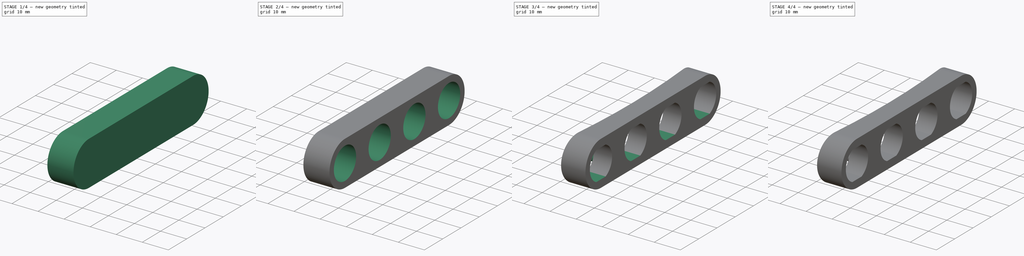
[diagram: build sequence overview — one tinted view per stage of 4, left to right]
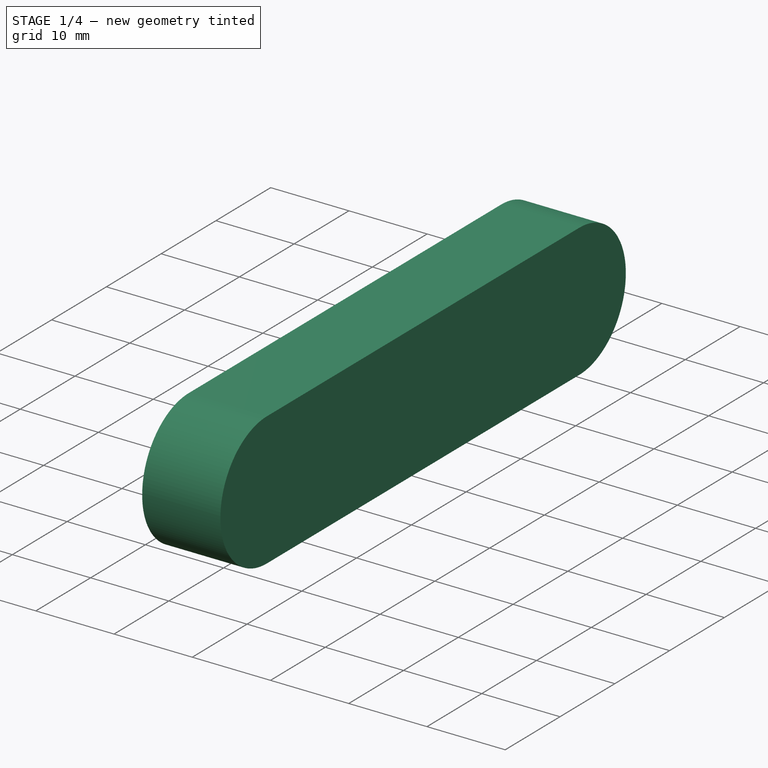
[diagram: stage 1 of 4 — iso view after this stage's code; geometry added in this stage tinted green]
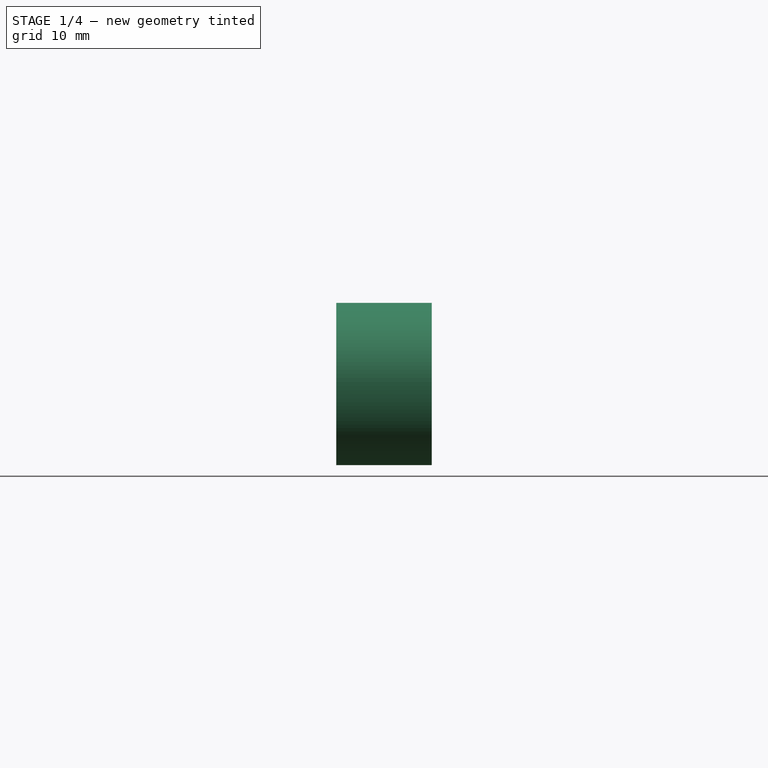
[diagram: stage 1 of 4 — front view after this stage's code; geometry added in this stage tinted green]
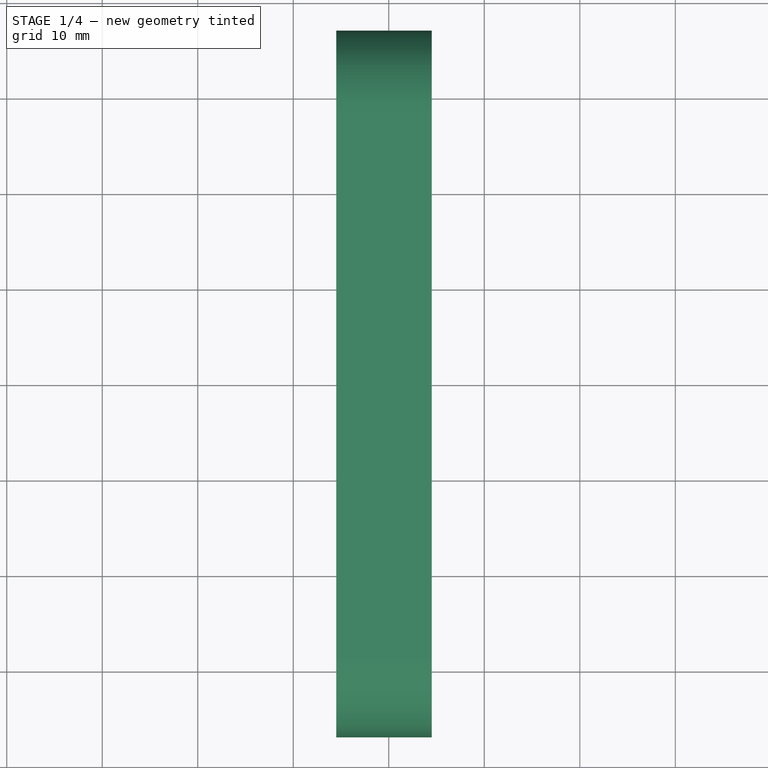
[diagram: stage 1 of 4 — top view after this stage's code; geometry added in this stage tinted green]
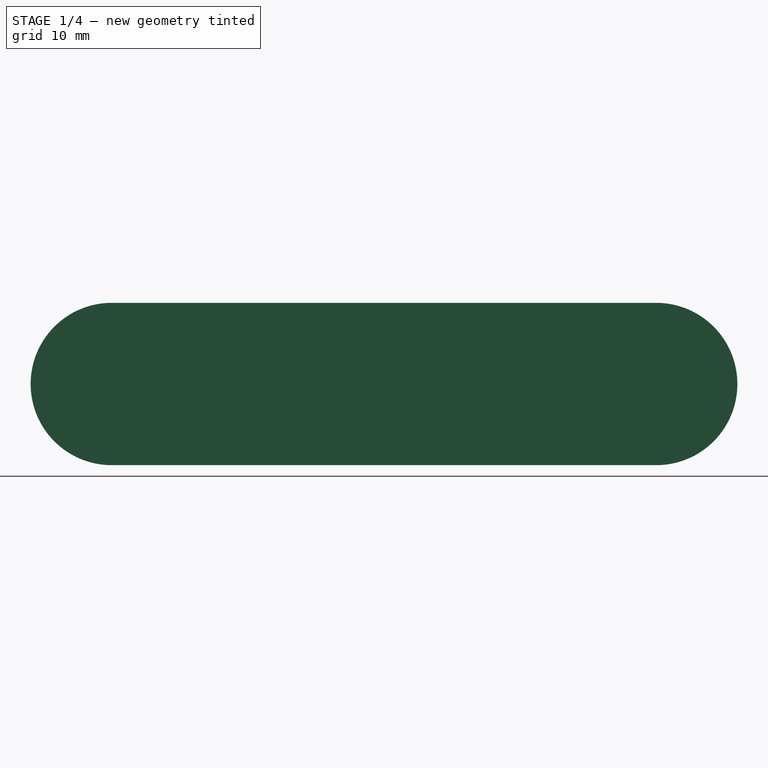
[diagram: stage 1 of 4 — right view after this stage's code; geometry added in this stage tinted green]
FCSTD DOCUMENT  (FreeCAD 1.0R39285 (Git))
Label: Holder_Banana_Plugs
License: All rights reserved
LicenseURL: https://en.wikipedia.org/wiki/All_rights_reserved
objects: Sketcher::SketchObject×9, PartDesign::Hole×2, PartDesign::Pad×2, Spreadsheet::Sheet×1, App::DocumentObjectGroup×1, Part::Extrusion×1, PartDesign::FeatureBase×1, PartDesign::Pocket×1, PartDesign::SubtractiveLoft×1, PartDesign::Chamfer×1, PartDesign::Body×1
note: 43 computed .brp shape members not serialized (recipe doc carries the construction recipe); baked Part::Feature solids carry a one-line shape summary decoded from their .brp

FEATURE [Spreadsheet::Sheet] Parameters
  cells = A1='Parameter; B1='Value; C1='Fromula; D1='Tolerance; E1='Comment; A2='d0; B2(d0_)=14.6; C2='14.6mm; A3='d1; B3(d1_)=14.143; C3='14.143mm; A4='d10; B4(d10_)=57; C4='57mm; A5='d12; B5(d12_)=5; C5='5mm; A6='d13; B6(d13_)=118; C6='118°; A7='d17; B7(d17_)=10; C7='10mm; A8='d18; B8(d18_)=0; C8='0°; A9='d2; B9(d2_)=19; C9='19mm; A10='d20; B10(d20_)=12.2; C10='12.2mm; A11='d21; B11(d21_)=6; C11='6mm; A12='d22; B12(d22_)=4; C12='4mm; A13='d23; B13(d23_)=2; C13='2mm; A14='d24; B14(d24_)=90; C14='90°; A15='d25; B15(d25_)=8; C15='8mm; A16='d26; B16(d26_)=118; C16='118°; A17='d27; B17(d27_)=19; C17='19mm; A18='d28; B18(d28_)==-10; C18='-10mm; A19='d36; B19(d36_)=15.1; C19='15.1mm; A20='d37; B20(d37_)=3; C20='3mm; A21='d38; B21(d38_)=0; C21='0°; A22='d39; B22(d39_)=2.9; C22='2.9mm; A23='d40; B23(d40_)=4; C23='4mm; A24='d41; B24(d41_)=10; C24='10mm; A25='d42; B25(d42_)=0; C25='0°; A26='d43; B26(d43_)=0.5; C26='0.5mm; A27='d44; B27(d44_)=2; C27='2mm; A28='d45; B28(d45_)=45; C28='45°; A29='d46; B29(d46_)=11.1; C29='11.1mm; A30='d47; B30(d47_)=10; C30='10mm; A31='d48; B31(d48_)=0; C31='0°; A32='d49; B32(d49_)=4.2; C32='4.2mm; A33='d50; B33(d50_)=6; C33='6mm; A34='d51; B34(d51_)=6.3; C34='6.3mm; A35='d52; B35(d52_)=2; C35='2mm; A36='d53; B36(d53_)=90; C36='90°; A37='d54; B37(d54_)=7; C37='7mm; A38='d55; B38(d55_)=0; C38='0°; A39='d59; B39(d59_)=5.64257585306618; C39='5.64258mm; A40='d64; B40(d64_)=617.104; C40='617.104mm; A41='d65; B41(d65_)=315.75; C41='315.75mm; A42='d66; B42(d66_)=617.402; C42='617.402mm; A43='d67; B43(d67_)=0; C43='0; A44='d68; B44(d68_)=90; C44='90°; A45='d69; B45(d69_)=0; C45='0; A46='d7; B46(d7_)=15; C46='15mm; A47='d70; B47(d70_)=90; C47='90°; A48='d8; B48(d8_)=84.5; C48='84.5mm; A49='d9; B49(d9_)=8.5; C49='8.5mm
FEATURE [Sketcher::SketchObject] Sketch5
  ArcFitTolerance = 1e-06
  FullyConstrained = true
  MakeInternals = false
  Placement = pos=(84.5,0,0) rot=(0,1,0;1.5708rad)
  sketch-geometry (7):
    g0: LineSegment [constr] StartX=14.1426 StartY=28.5 StartZ=0 EndX=14.1426 EndY=9.5 EndZ=0
    g1: LineSegment [constr] StartX=14.1426 StartY=9.5 StartZ=0 EndX=14.1426 EndY=-9.5 EndZ=0
    g2: LineSegment [constr] StartX=14.1426 StartY=-9.5 StartZ=0 EndX=14.1426 EndY=-28.5 EndZ=0
    g3: Circle CenterX=14.1426 CenterY=28.5 CenterZ=0 NormalX=0 NormalY=0 NormalZ=1 AngleXU=0 Radius=6.1
    g4: Circle CenterX=14.1426 CenterY=9.5 CenterZ=0 NormalX=0 NormalY=0 NormalZ=1 AngleXU=0 Radius=6.1
    g5: Circle CenterX=14.1426 CenterY=-9.5 CenterZ=0 NormalX=0 NormalY=0 NormalZ=1 AngleXU=0 Radius=6.1
    g6: Circle CenterX=14.1426 CenterY=-28.5 CenterZ=0 NormalX=0 NormalY=0 NormalZ=1 AngleXU=0 Radius=6.1
  constraints (16):
    c: Equal(g2,g1)
    c: Equal(g1,g0)
    c: Vertical(g1)
    c: Vertical(g2)
    c: Coincident(g2,g1)
    c: Coincident(g1,g0)
    c: Coincident(g0,g-3)
    c: Coincident(g2,g-4)
    c: Coincident(g3,g0)
    c: Coincident(g4,g0)
    c: Coincident(g5,g1)
    c: Coincident(g6,g2)
    c: Equal(g3,g4)
    c: Equal(g4,g5)
    c: Equal(g5,g6)
    c: Diameter(g3) = 12.2
FEATURE [Sketcher::SketchObject] Hole3_bp
  ArcFitTolerance = 1e-06
  FullyConstrained = false
  MakeInternals = false
  Placement = pos=(74.5,-19,-18.1426) rot=(0,-1,0;1.5708rad)
  sketch-geometry (4):
    g0: Circle CenterX=8 CenterY=0 CenterZ=0 NormalX=0 NormalY=0 NormalZ=1 AngleXU=0 Radius=2.1
    g1: Circle CenterX=0 CenterY=19 CenterZ=0 NormalX=0 NormalY=0 NormalZ=1 AngleXU=0 Radius=2.1
    g2: Circle CenterX=8 CenterY=19 CenterZ=0 NormalX=0 NormalY=0 NormalZ=1 AngleXU=0 Radius=2.1
    g3: Circle CenterX=0 CenterY=38 CenterZ=0 NormalX=0 NormalY=0 NormalZ=1 AngleXU=0 Radius=2.1
FEATURE [Sketcher::SketchObject] Sketch1
  ArcFitTolerance = 1e-06
  FullyConstrained = true
  MakeInternals = false
  Placement = pos=(84.5,0,0) rot=(0,1,0;1.5708rad)
  expr: .Constraints.d10 = Parameters.d10_
  expr: .Constraints.d59 = Parameters.d59_
  expr: .Constraints.d9 = Parameters.d9_
  sketch-geometry (9):
    g0: LineSegment StartX=22.6426 StartY=-28.5 StartZ=0 EndX=5.64258 EndY=-28.5 EndZ=0
    g1: LineSegment StartX=5.64258 StartY=-28.5 StartZ=0 EndX=5.64258 EndY=28.5 EndZ=0
    g2: LineSegment StartX=5.64258 StartY=28.5 StartZ=0 EndX=22.6426 EndY=28.5 EndZ=0
    g3: LineSegment StartX=22.6426 StartY=28.5 StartZ=0 EndX=22.6426 EndY=-28.5 EndZ=0
    g4: LineSegment [constr] StartX=22.6426 StartY=-28.5 StartZ=0 EndX=5.64258 EndY=28.5 EndZ=0
    g5: LineSegment [constr] StartX=5.64258 StartY=-28.5 StartZ=0 EndX=22.6426 EndY=28.5 EndZ=0
    g6: ArcOfCircle CenterX=14.1426 CenterY=-28.5 CenterZ=0 NormalX=0 NormalY=0 NormalZ=1 AngleXU=0 Radius=8.5 StartAngle=3.14159 EndAngle=6.28319
    g7: ArcOfCircle CenterX=14.1426 CenterY=28.5 CenterZ=0 NormalX=0 NormalY=0 NormalZ=1 AngleXU=0 Radius=8.5 StartAngle=4.0561e-06 EndAngle=3.14159
    g8: GeomPoint X=14.1426 Y=0 Z=0
  constraints (24):
    c: Perpendicular(g0,g1)
    c: Parallel(g0,g2)
    c: Parallel(g1,g3)
    c: Horizontal(g0)
    c: Radius(g6) = 8.5  'd9'
    c: Distance(g1) = 57  'd10'
    c: Distance(g-1,g1) = 5.64258  'd59'
    c: Coincident(g0,g3)
    c: Coincident(g0,g4)
    c: Coincident(g0,g6)
    c: Coincident(g1,g2)
    c: Coincident(g1,g4)
    c: Coincident(g1,g7)
    c: Coincident(g0,g1)
    c: Coincident(g0,g5)
    c: Coincident(g0,g6)
    c: Coincident(g2,g3)
    c: Coincident(g2,g5)
    c: Coincident(g2,g7)
    c: PointOnObject(g8,g5)
    c: PointOnObject(g8,g4)
    c: Horizontal(g8,g-1)
    c: Tangent(g6,g3)
    c: Tangent(g7,g3)
FEATURE [App::DocumentObjectGroup] _Holder_Banana_Plugs_broken_link  label="Holder_Banana_Plugs_broken_link"
  Group = -> [Sketch1]
FEATURE [Sketcher::SketchObject] Sketch1_bp
  ArcFitTolerance = 1e-06
  FullyConstrained = false
  MakeInternals = false
  Placement = pos=(84.5,0,0) rot=(0,1,0;1.5708rad)
  sketch-geometry (4):
    g0: ArcOfCircle CenterX=14.1426 CenterY=28.5 CenterZ=0 NormalX=0 NormalY=0 NormalZ=1 AngleXU=0 Radius=8.5 StartAngle=0 EndAngle=3.14159
    g1: LineSegment StartX=5.64258 StartY=28.5 StartZ=0 EndX=5.64258 EndY=-28.5 EndZ=0
    g2: ArcOfCircle CenterX=14.1426 CenterY=-28.5 CenterZ=0 NormalX=0 NormalY=0 NormalZ=1 AngleXU=0 Radius=8.5 StartAngle=3.14159 EndAngle=6.28319
    g3: LineSegment StartX=22.6426 StartY=-28.5 StartZ=0 EndX=22.6426 EndY=28.5 EndZ=0
FEATURE [Part::Extrusion] Extrusion3
  Base = -> Sketch1_bp
  Dir = (1,0,0)
  DirMode = 0
  FaceMakerClass = Part::FaceMakerBullseye
  FaceMakerMode = 3
  LengthFwd = 10
  LengthRev = 0
  Reversed = true
  Solid = true
  Symmetric = false
  expr: LengthFwd = Parameters.d17_
  expr: TaperAngle = Parameters.d18_
FEATURE [PartDesign::FeatureBase] BaseFeature
  BaseFeature = -> Extrusion3
  Suppressed = false
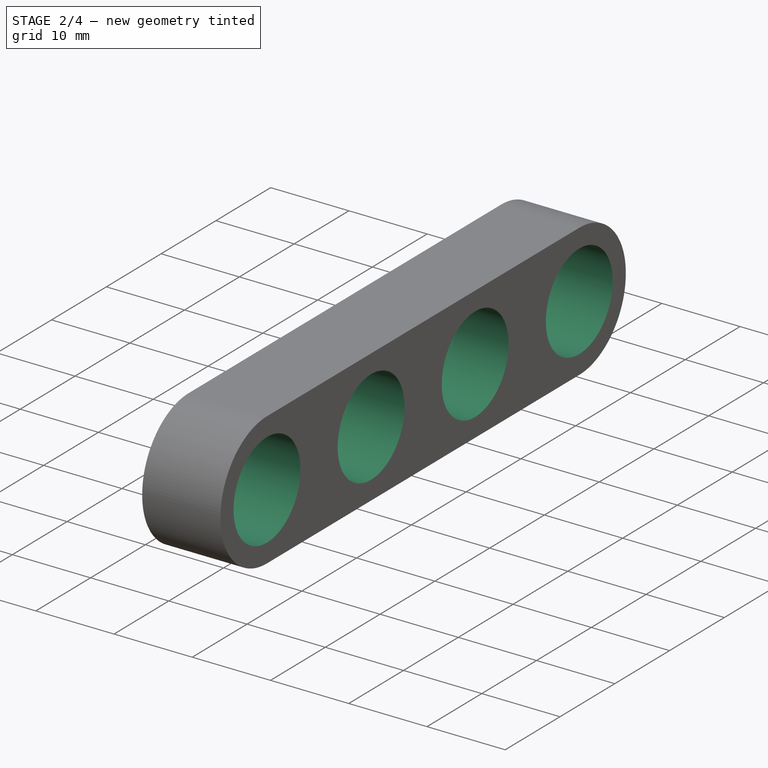
[diagram: stage 2 of 4 — iso view after this stage's code; geometry added in this stage tinted green]
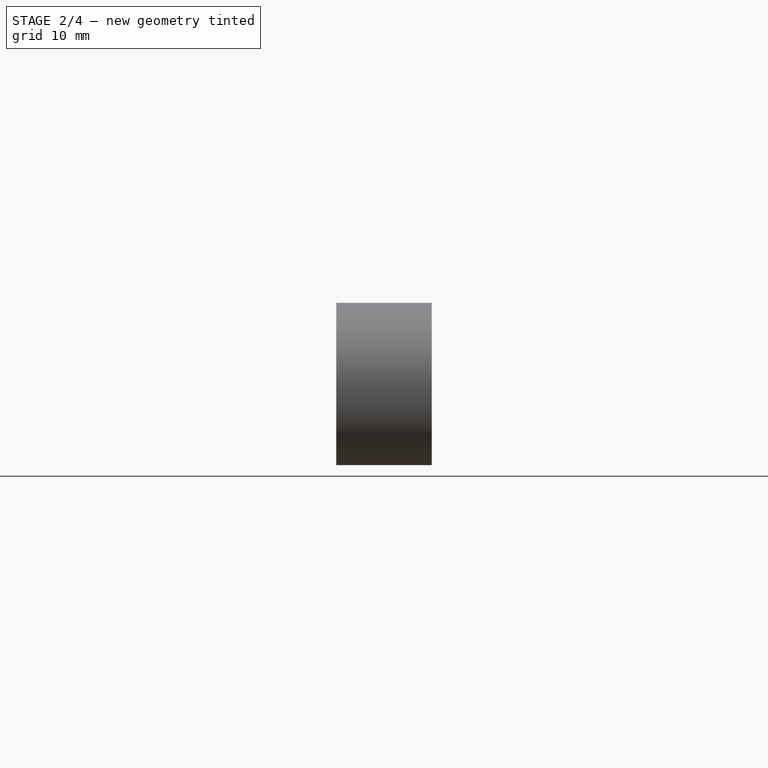
[diagram: stage 2 of 4 — front view after this stage's code; geometry added in this stage tinted green]
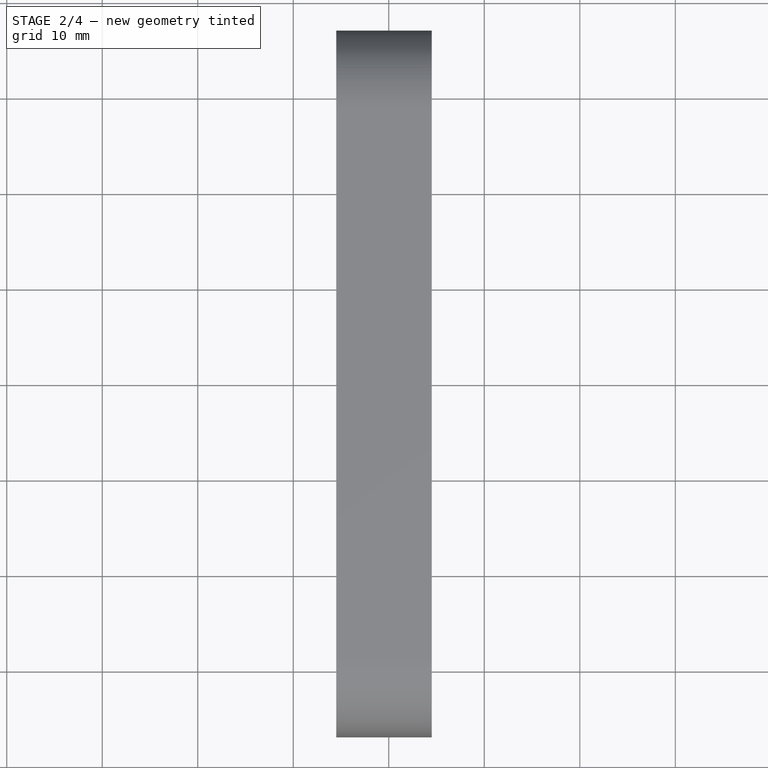
[diagram: stage 2 of 4 — top view after this stage's code; geometry added in this stage tinted green]
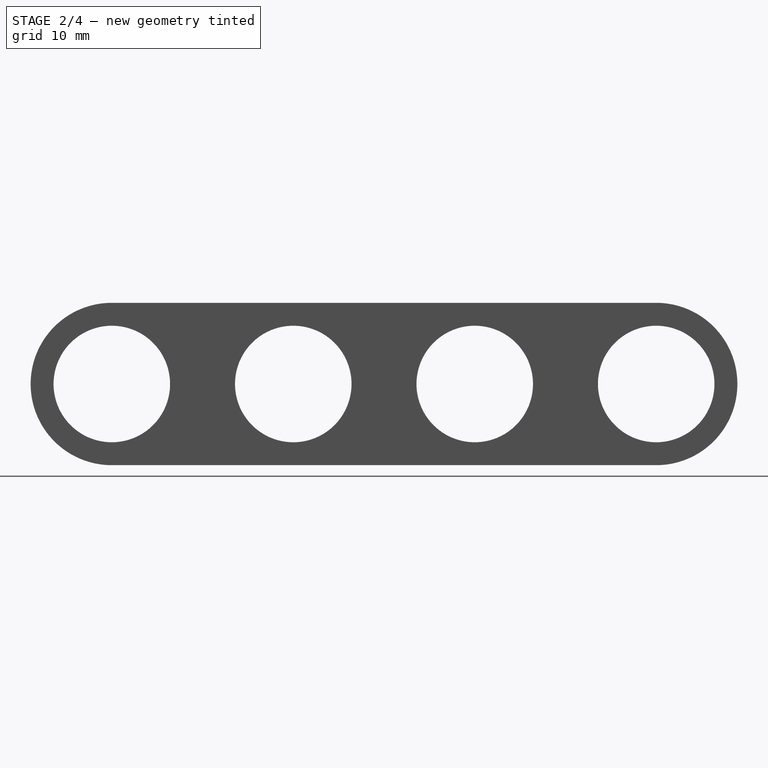
[diagram: stage 2 of 4 — right view after this stage's code; geometry added in this stage tinted green]
FEATURE [PartDesign::Hole] Hole
  BaseFeature = -> BaseFeature
  CustomThreadClearance = 0
  Depth = 25
  DepthType = 0
  Diameter = 12.2
  DrillForDepth = false
  DrillPoint = 1
  DrillPointAngle = 118
  HoleCutCountersinkAngle = 90
  HoleCutCustomValues = false
  HoleCutDepth = 0
  HoleCutDiameter = 6.1
  HoleCutType = 0
  ModelThread = false
  Profile = -> Sketch5
  Refine = true
  Suppressed = false
  Tapered = false
  TaperedAngle = 90
  ThreadClass = 0
  ThreadDepth = 25
  ThreadDepthType = 0
  ThreadDirection = 0
  ThreadFit = 0
  ThreadSize = 0
  ThreadType = 0
  Threaded = false
  UseCustomThreadClearance = false
FEATURE [Sketcher::SketchObject] Sketch7
  ArcFitTolerance = 1e-06
  ExternalGeometry = -> [Hole]
  FullyConstrained = true
  MakeInternals = false
  Placement = pos=(74.5,0,0) rot=(0,1,0;1.5708rad)
  sketch-geometry (4):
    g0: Circle CenterX=14.1426 CenterY=-28.5 CenterZ=0 NormalX=0 NormalY=0 NormalZ=1 AngleXU=0 Radius=7.55
    g1: Circle CenterX=14.1426 CenterY=-9.5 CenterZ=0 NormalX=0 NormalY=0 NormalZ=1 AngleXU=0 Radius=7.55
    g2: Circle CenterX=14.1426 CenterY=9.5 CenterZ=0 NormalX=0 NormalY=0 NormalZ=1 AngleXU=0 Radius=7.55
    g3: Circle CenterX=14.1426 CenterY=28.5 CenterZ=0 NormalX=0 NormalY=0 NormalZ=1 AngleXU=0 Radius=7.55
  constraints (8):
    c: Equal(g3,g2)
    c: Equal(g1,g2)
    c: Equal(g1,g0)
    c: Diameter(g0) = 15.1  'd36'
    c: Coincident(g3,g-3)
    c: Coincident(g-4,g2)
    c: Coincident(g1,g-5)
    c: Coincident(g0,g-6)
FEATURE [PartDesign::Pocket] Pocket
  BaseFeature = -> Hole
  Direction = (-1,0,-2e-16)
  Length = 3
  Length2 = 5
  Profile = -> Sketch7
  ReferenceAxis = -> Sketch7 [N_Axis]
  Refine = true
  Reversed = true
  Suppressed = false
  Type = 0
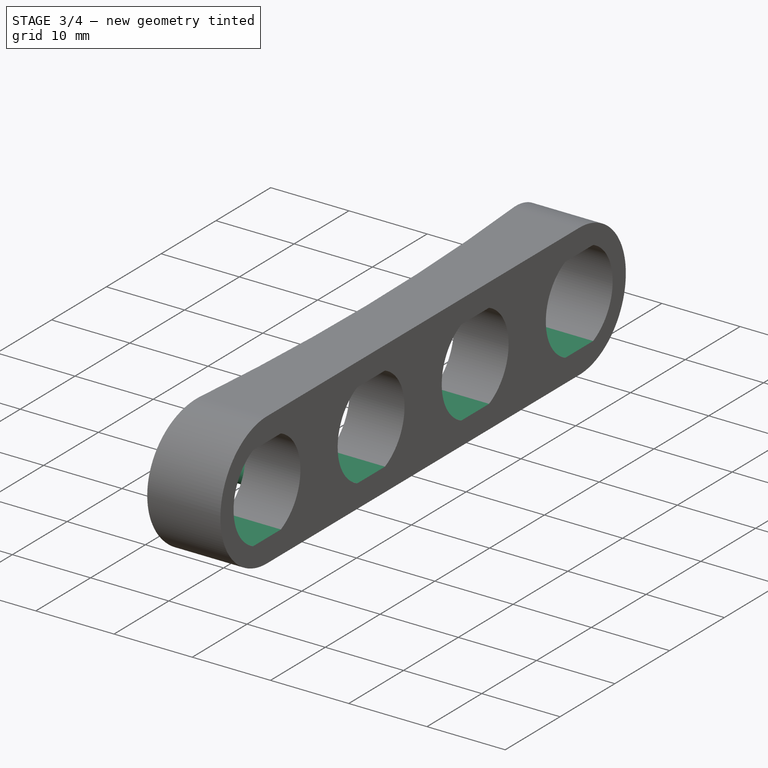
[diagram: stage 3 of 4 — iso view after this stage's code; geometry added in this stage tinted green]
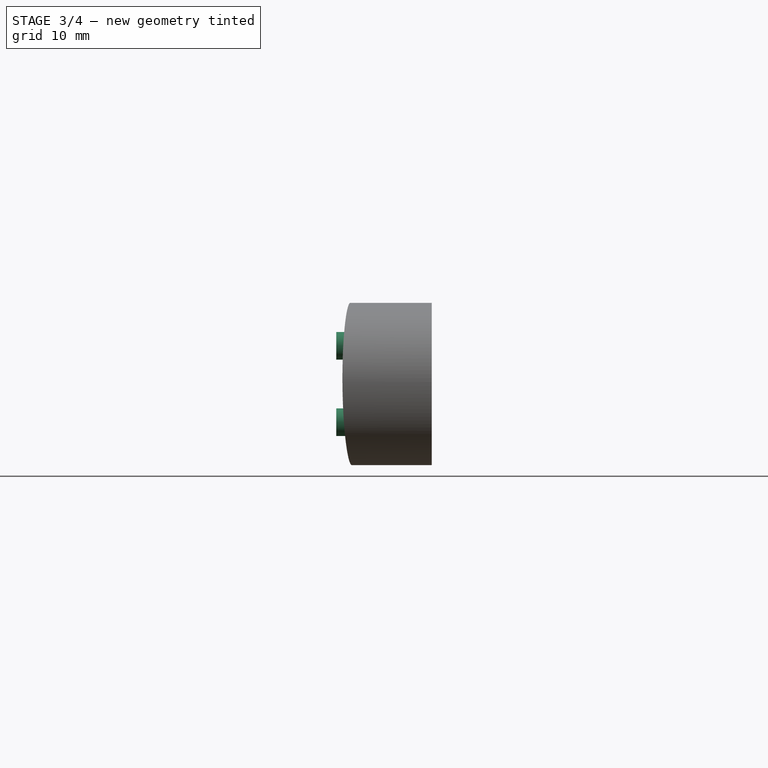
[diagram: stage 3 of 4 — front view after this stage's code; geometry added in this stage tinted green]
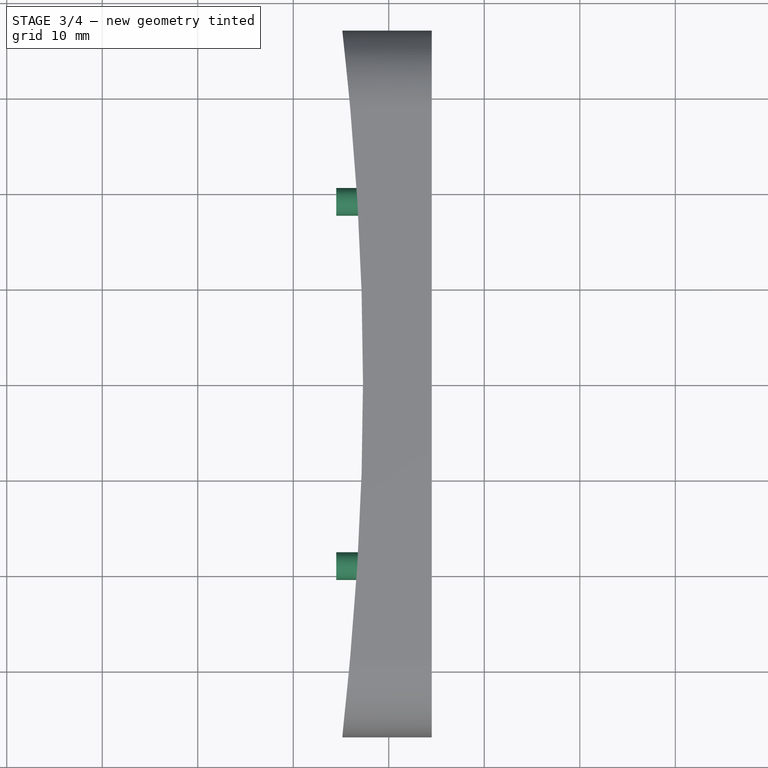
[diagram: stage 3 of 4 — top view after this stage's code; geometry added in this stage tinted green]
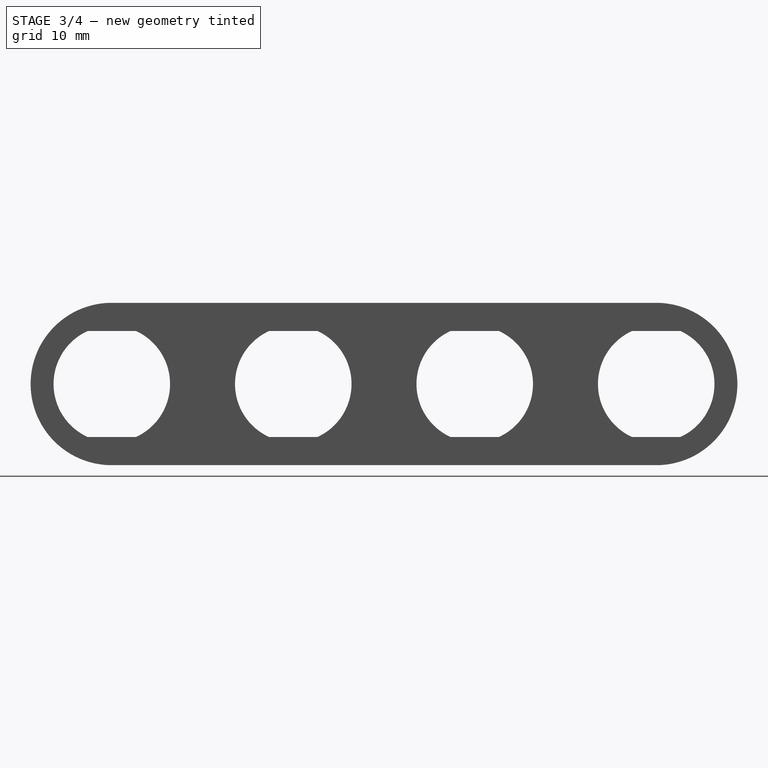
[diagram: stage 3 of 4 — right view after this stage's code; geometry added in this stage tinted green]
FEATURE [Sketcher::SketchObject] Sketch13
  ArcFitTolerance = 1e-06
  ExternalGeometry = -> [Pocket]
  FullyConstrained = true
  MakeInternals = false
  Placement = pos=(84.5,-28.5,-5.64258) rot=(0,0,1;0rad)
  sketch-geometry (2):
    g0: Circle CenterX=-315.75 CenterY=28.5 CenterZ=0 NormalX=0 NormalY=0 NormalZ=1 AngleXU=0 Radius=308.55
    g1: GeomPoint X=0 Y=28.5 Z=0
  constraints (4):
    c: Diameter(g0) = 617.1
    c: Symmetric(g-3,g-1,g1)
    c: Distance(g0,g-3) = 315.75
    c: Horizontal(g0,g1)
FEATURE [Sketcher::SketchObject] Sketch14
  ArcFitTolerance = 1e-06
  ExternalGeometry = -> [Sketch13]
  FullyConstrained = true
  MakeInternals = false
  Placement = pos=(84.5,-28.5,-22.6426) rot=(0,1,0;3.14159rad)
  sketch-geometry (1):
    g0: Circle CenterX=315.75 CenterY=28.5 CenterZ=0 NormalX=0 NormalY=0 NormalZ=1 AngleXU=0 Radius=308.7
  constraints (2):
    c: Diameter(g0) = 617.4
    c: Coincident(g0,g-3)
FEATURE [PartDesign::SubtractiveLoft] SubtractiveLoft
  BaseFeature = -> Pocket
  Closed = false
  Profile = -> Sketch14
  Refine = true
  Ruled = false
  Sections = -> [Sketch13]
  Suppressed = false
FEATURE [Sketcher::SketchObject] Sketch8
  ArcFitTolerance = 1e-06
  ExternalGeometry = -> [SubtractiveLoft]
  FullyConstrained = true
  MakeInternals = false
  Placement = pos=(84.5,0,0) rot=(0,1,0;1.5708rad)
  expr: .Constraints.d40 = Parameters.d40_
  sketch-geometry (7):
    g0: Circle CenterX=18.1426 CenterY=-19 CenterZ=0 NormalX=0 NormalY=0 NormalZ=1 AngleXU=0 Radius=1.45
    g1: Circle CenterX=10.1426 CenterY=19 CenterZ=0 NormalX=0 NormalY=0 NormalZ=1 AngleXU=0 Radius=1.45
    g2: LineSegment StartX=14.1426 StartY=28.5 StartZ=0 EndX=14.1426 EndY=9.5 EndZ=0
    g3: LineSegment StartX=14.1426 StartY=-9.5 StartZ=0 EndX=14.1426 EndY=-28.5 EndZ=0
    g4: LineSegment StartX=10.1426 StartY=19 StartZ=0 EndX=18.1426 EndY=-19 EndZ=0
    g5: GeomPoint X=14.1426 Y=8.9e-15 Z=0
    g6: GeomPoint X=14.1426 Y=-19 Z=0
  constraints (13):
    c: Equal(g0,g1)
    c: Diameter(g0) = 2.9  'd39'
    c: Distance(g4,g3) = 4  'd40'
    c: Coincident(g2,g-3)
    c: Coincident(g2,g-4)
    c: Coincident(g3,g-5)
    c: Coincident(g3,g-6)
    c: Coincident(g0,g4)
    c: Coincident(g1,g4)
    c: Symmetric(g1,g0,g5)
    c: Symmetric(g2,g3,g5)
    c: Symmetric(g3,g3,g6)
    c: Horizontal(g6,g0)
FEATURE [PartDesign::Pad] Pad
  BaseFeature = -> SubtractiveLoft
  Direction = (1,0,2e-16)
  Length = 10
  Length2 = 10
  Profile = -> Sketch8 [Edge1,Edge2]
  ReferenceAxis = -> Sketch8 [N_Axis]
  Refine = true
  Reversed = true
  Suppressed = false
  Type = 0
FEATURE [Sketcher::SketchObject] Sketch9
  ArcFitTolerance = 1e-06
  ExternalGeometry = -> [Pad]
  FullyConstrained = true
  MakeInternals = false
  Placement = pos=(84.5,0,0) rot=(0,1,0;1.5708rad)
  expr: .Constraints.d46 = Parameters.d46_
  sketch-geometry (12):
    g0: LineSegment StartX=8.59258 StartY=-34.938 StartZ=0 EndX=19.6926 EndY=-34.938 EndZ=0
    g1: LineSegment StartX=19.6926 StartY=-34.938 StartZ=0 EndX=19.6926 EndY=34.938 EndZ=0
    g2: LineSegment StartX=19.6926 StartY=34.938 StartZ=0 EndX=8.59258 EndY=34.938 EndZ=0
    g3: LineSegment StartX=8.59258 StartY=34.938 StartZ=0 EndX=8.59258 EndY=-34.938 EndZ=0
    g4: LineSegment [constr] StartX=8.59258 StartY=-34.938 StartZ=0 EndX=19.6926 EndY=34.938 EndZ=0
    g5: LineSegment [constr] StartX=19.6926 StartY=-34.938 StartZ=0 EndX=8.59258 EndY=34.938 EndZ=0
    g6: LineSegment [constr] StartX=14.1426 StartY=-9.5 StartZ=0 EndX=14.1426 EndY=9.5 EndZ=0
    g7: GeomPoint X=14.1426 Y=9.1e-15 Z=0
    g8: ArcOfCircle CenterX=14.1426 CenterY=28.5 CenterZ=0 NormalX=0 NormalY=0 NormalZ=1 AngleXU=0 Radius=8.5 StartAngle=4e-16 EndAngle=3.14159
    g9: ArcOfCircle CenterX=14.1426 CenterY=-28.5 CenterZ=0 NormalX=0 NormalY=0 NormalZ=1 AngleXU=0 Radius=8.5 StartAngle=3.14159 EndAngle=6.28319
    g10: LineSegment StartX=5.64258 StartY=28.5 StartZ=0 EndX=5.64258 EndY=-28.5 EndZ=0
    g11: LineSegment StartX=22.6426 StartY=-28.5 StartZ=0 EndX=22.6426 EndY=28.5 EndZ=0
  constraints (29):
    c: Perpendicular(g0,g1)
    c: Parallel(g0,g2)
    c: Parallel(g1,g3)
    c: Horizontal(g0)
    c: Distance(g2) = 11.1  'd46'
    c: Coincident(g0,g3)
    c: Coincident(g0,g4)
    c: Coincident(g1,g2)
    c: Coincident(g1,g4)
    c: Coincident(g0,g1)
    c: Coincident(g0,g5)
    c: Coincident(g2,g3)
    c: Coincident(g2,g5)
    c: PointOnObject(g7,g4)
    c: PointOnObject(g7,g5)
    c: Coincident(g6,g-8)
    c: Coincident(g-9,g6)
    c: Symmetric(g6,g6,g7)
    c: PointOnObject(g1,g-3)
    c: Coincident(g8,g-7)
    c: Coincident(g8,g-5)
    c: Coincident(g8,g-4)
    c: Coincident(g9,g-10)
    c: Coincident(g9,g-6)
    c: Coincident(g10,g8)
    c: Coincident(g10,g9)
    c: Vertical(g10)
    c: Coincident(g11,g9)
    c: Coincident(g11,g8)
FEATURE [PartDesign::Pad] Pad001
  BaseFeature = -> Pad
  Direction = (1,0,2e-16)
  Length = 7
  Length2 = 10
  Profile = -> Sketch9
  ReferenceAxis = -> Sketch9 [N_Axis]
  Refine = true
  Reversed = true
  Suppressed = false
  Type = 0
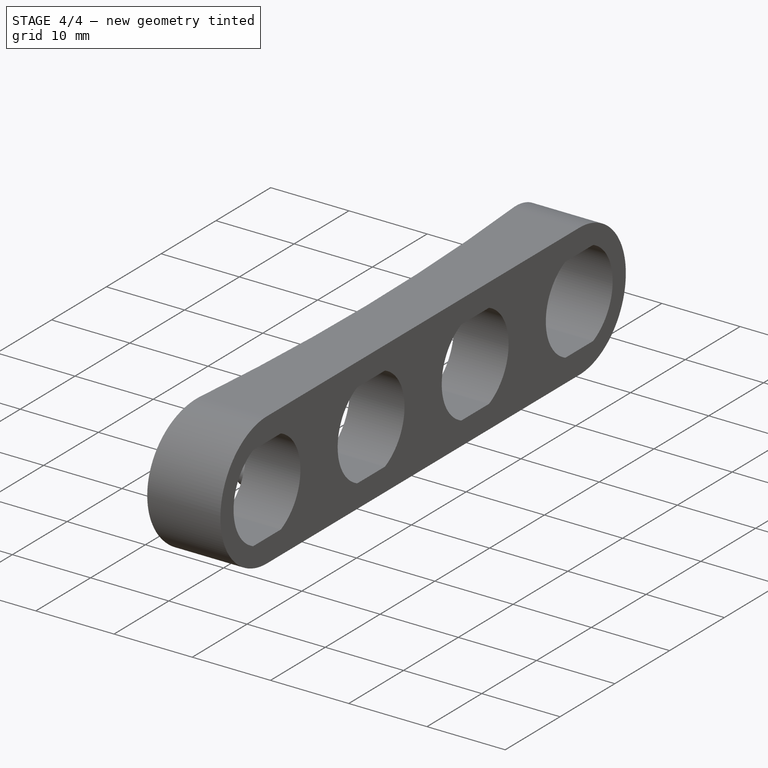
[diagram: stage 4 of 4 — iso view after this stage's code; geometry added in this stage tinted green]
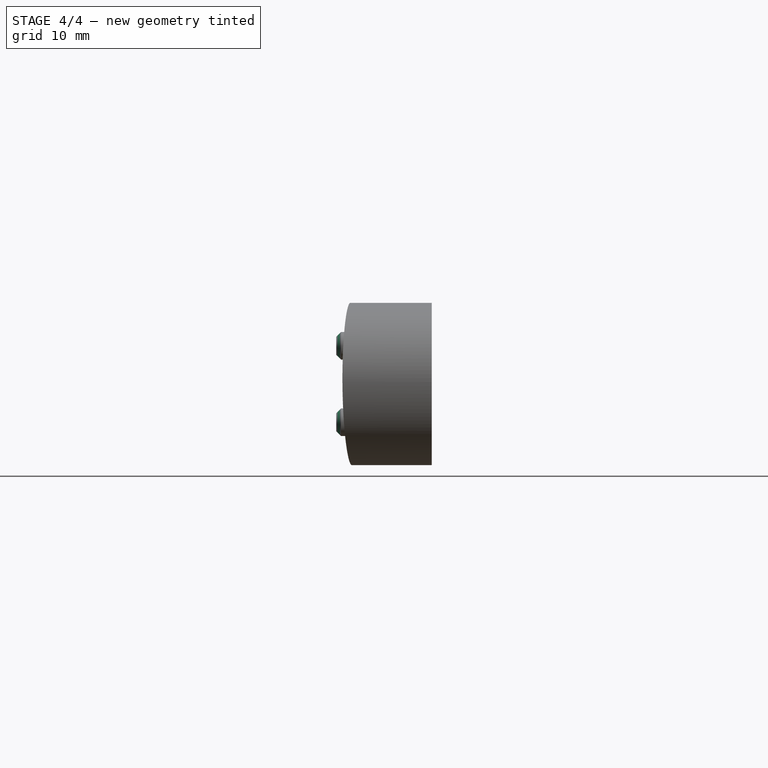
[diagram: stage 4 of 4 — front view after this stage's code; geometry added in this stage tinted green]
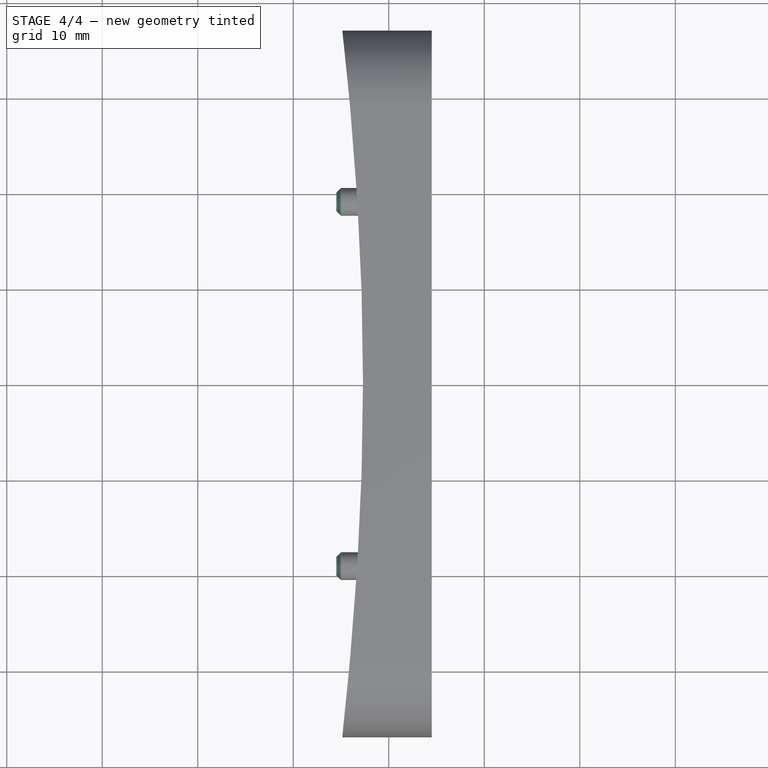
[diagram: stage 4 of 4 — top view after this stage's code; geometry added in this stage tinted green]
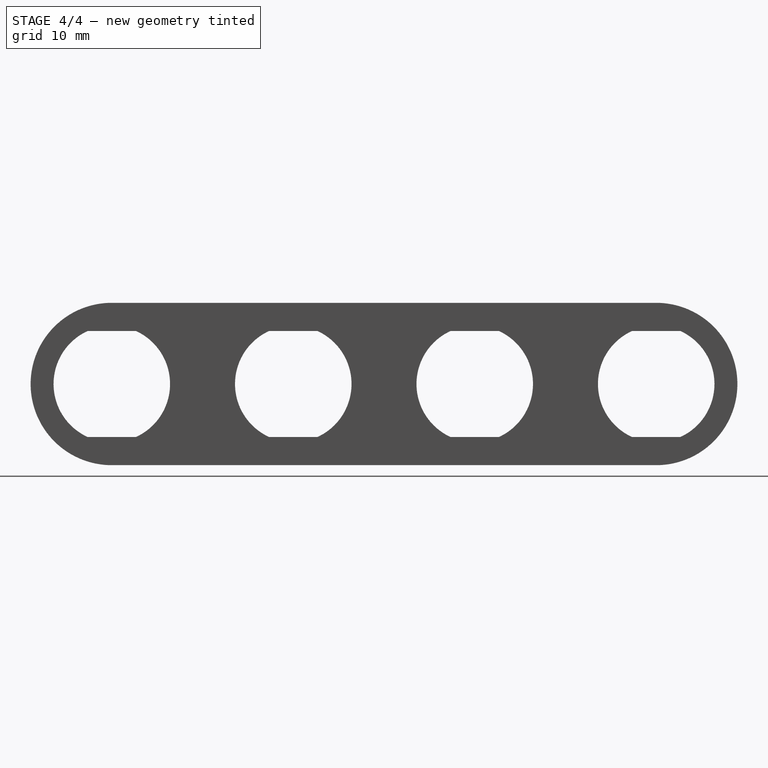
[diagram: stage 4 of 4 — right view after this stage's code; geometry added in this stage tinted green]
FEATURE [PartDesign::Hole] Hole001
  BaseFeature = -> Pad001
  CustomThreadClearance = 0
  Depth = 7
  DepthType = 0
  Diameter = 4.2
  DrillForDepth = false
  DrillPoint = 0
  DrillPointAngle = 118
  HoleCutCountersinkAngle = 90
  HoleCutCustomValues = false
  HoleCutDepth = 0
  HoleCutDiameter = 6.1
  HoleCutType = 0
  ModelThread = false
  Profile = -> Hole3_bp
  Refine = true
  Suppressed = false
  Tapered = false
  TaperedAngle = 90
  ThreadClass = 0
  ThreadDepth = 7
  ThreadDepthType = 0
  ThreadDirection = 0
  ThreadFit = 0
  ThreadSize = 0
  ThreadType = 0
  Threaded = false
  UseCustomThreadClearance = false
FEATURE [PartDesign::Chamfer] Chamfer
  Angle = 45
  Base = -> Hole001 [Edge112,Edge121]
  BaseFeature = -> Hole001
  ChamferType = 0
  FlipDirection = false
  Refine = true
  Size = 0.5
  Size2 = 1
  SupportTransform = false
  Suppressed = false
  UseAllEdges = false
FEATURE [PartDesign::Body] Body_0
  AllowCompound = false
  BaseFeature = -> Extrusion3
  Group = -> [BaseFeature,Sketch5,Hole,Sketch7,Pocket,Sketch13,Sketch14,SubtractiveLoft,Sketch8,Pad,Sketch9,Pad001,Hole3_bp,Hole001,Chamfer]
  Origin = -> Origin
  Tip = -> Chamfer
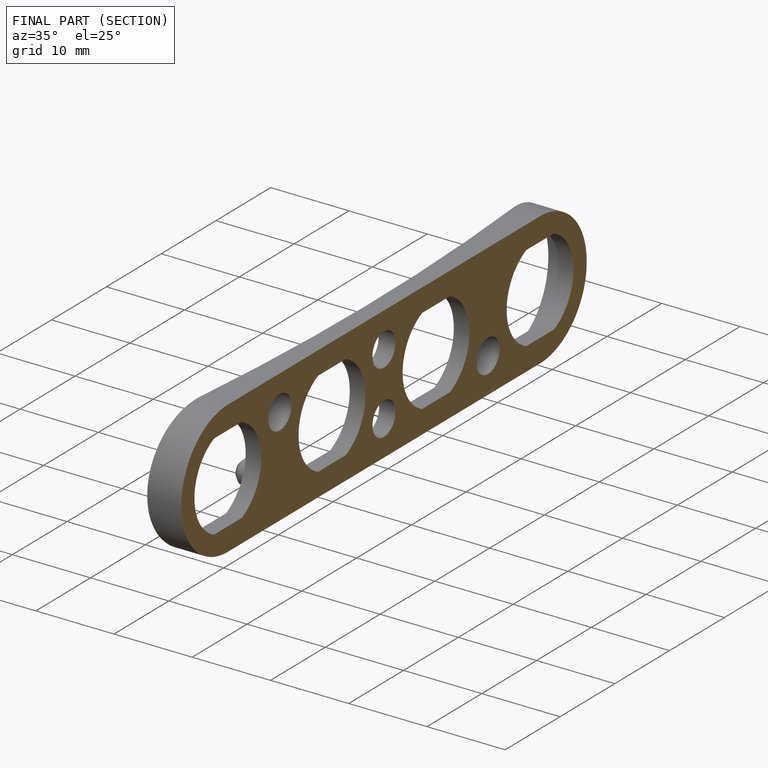
[diagram: finished part — half-section view (interior)]
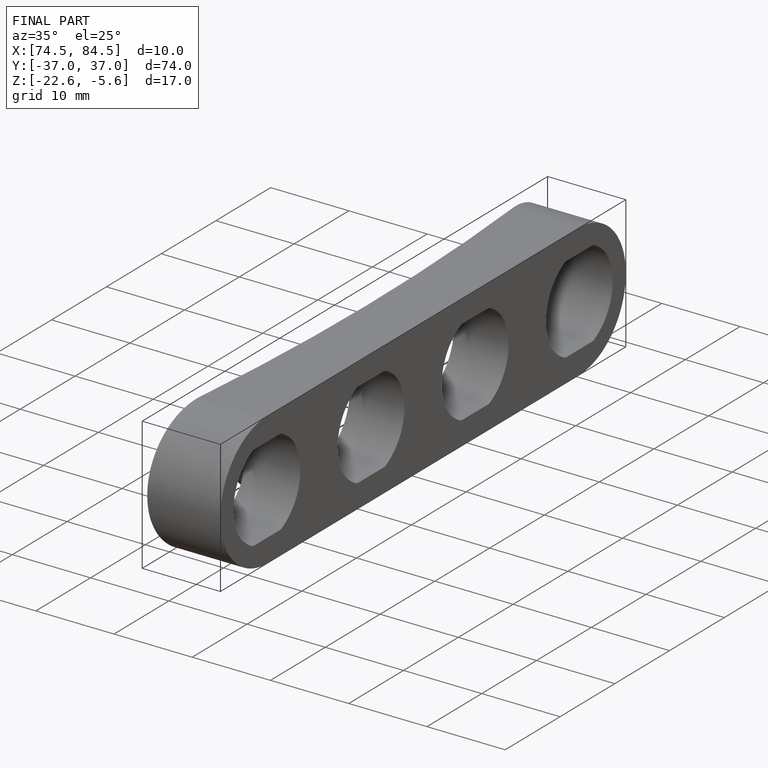
[diagram: finished part — iso view with bounding-box wireframe]
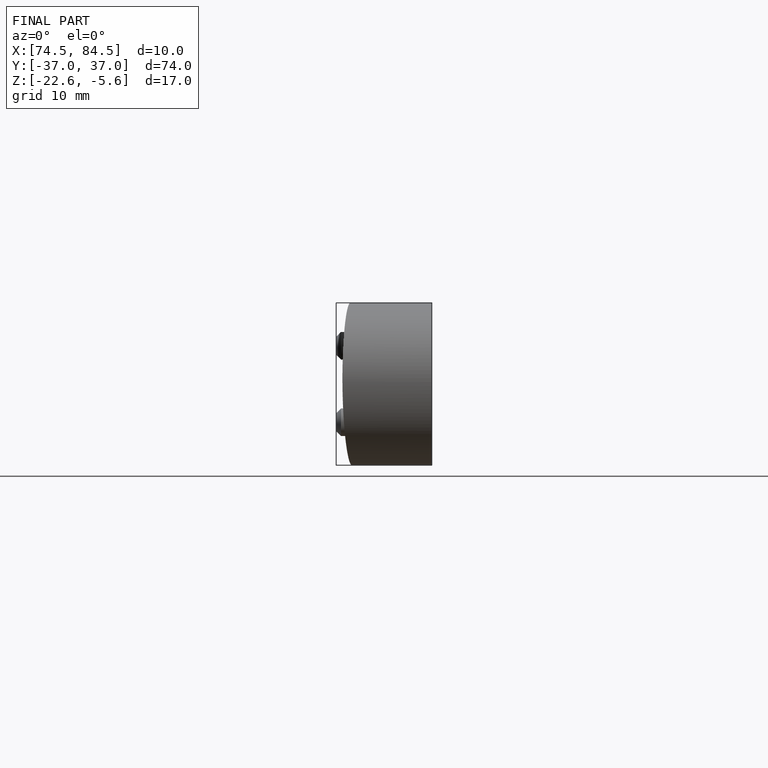
[diagram: finished part — front view with bounding-box wireframe]
